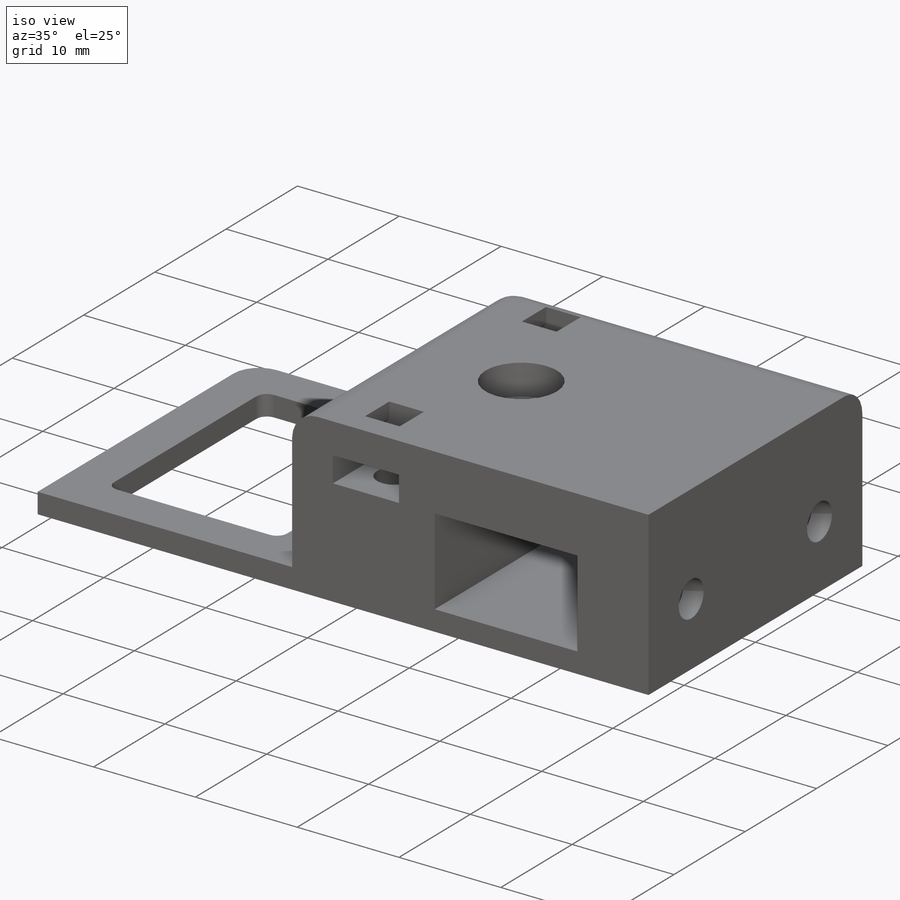
[diagram: iso view]
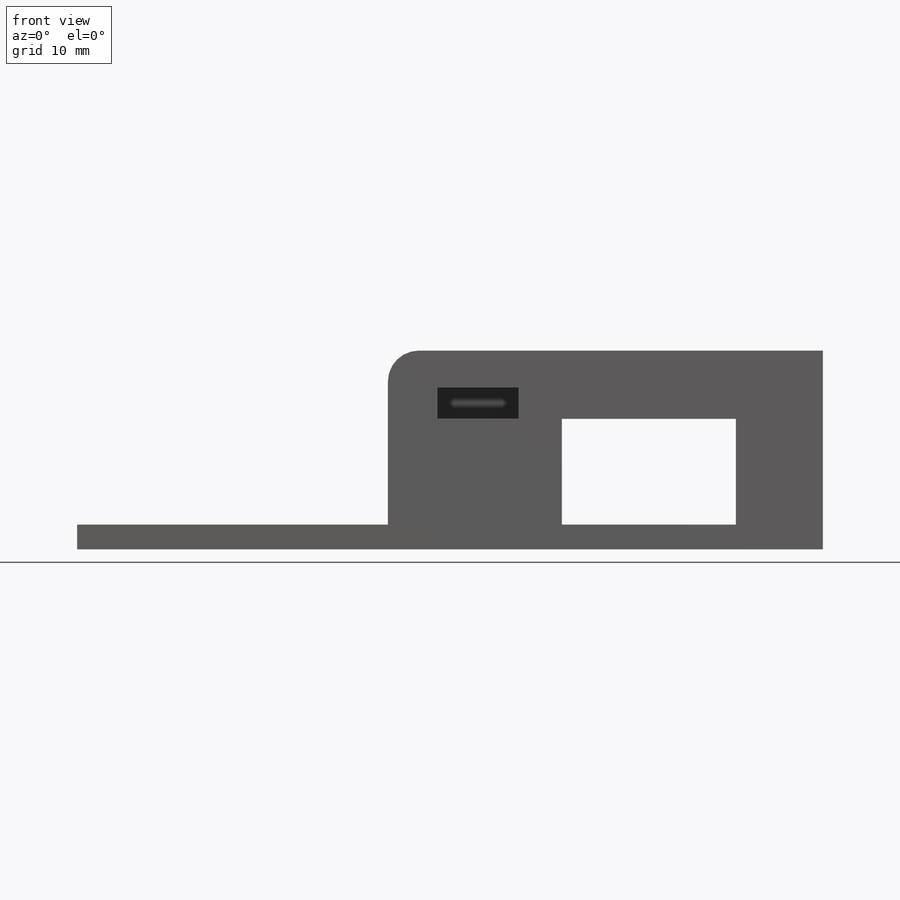
[diagram: front view]
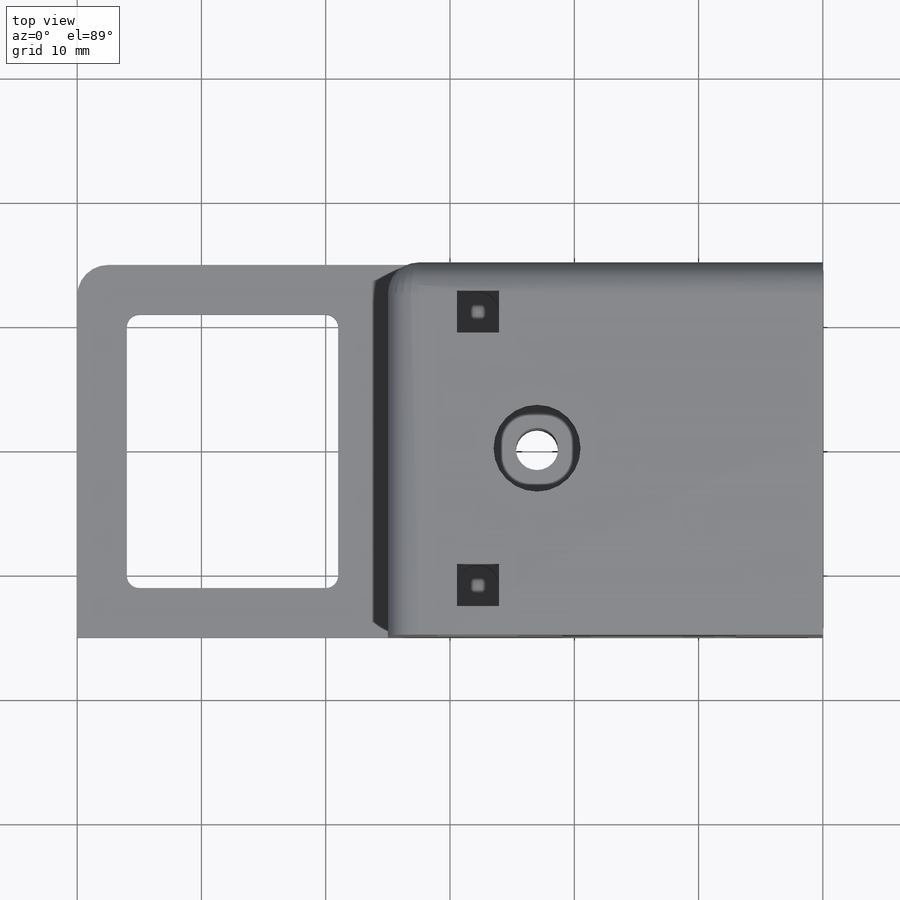
[diagram: top view]
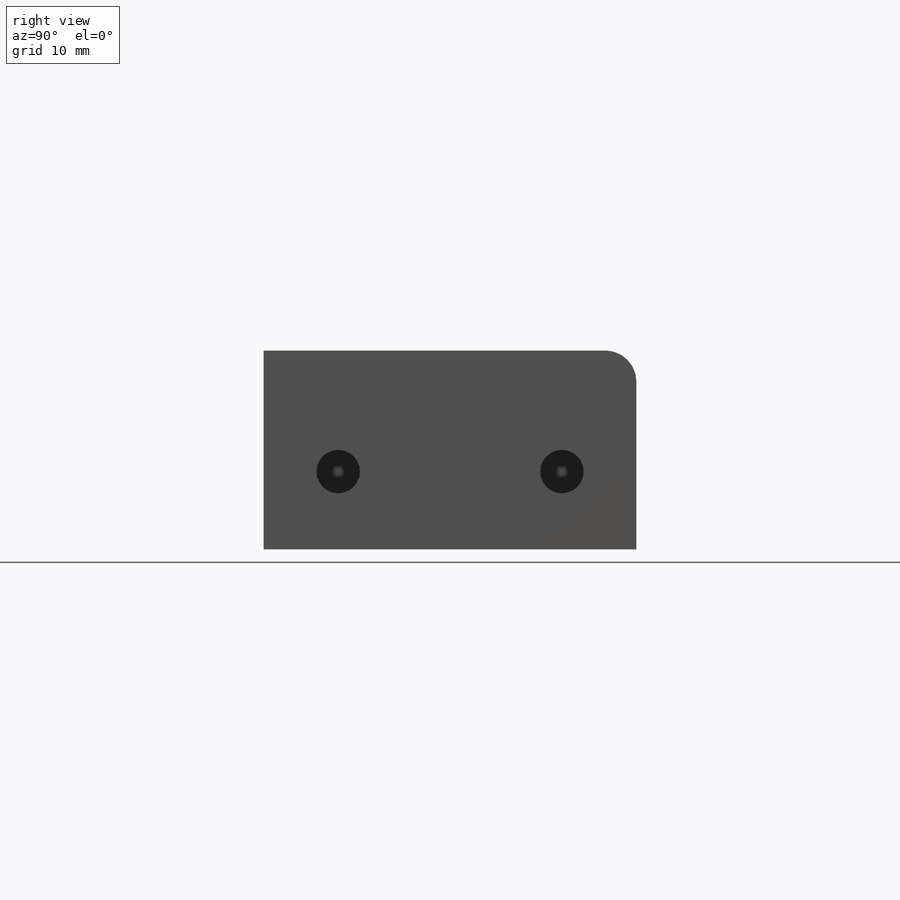
[diagram: right view]
SOLIDWORKS PART (.sldprt)
format: sldprt  version: not decoded by parser v0  size: 336,896 bytes
history: native  units: mm
features: sketch x11, cut_extrude x10, fillet x2, material x1, extrude x1, chamfer x1, mirror x1 (+11 scaffold rows collapsed)
feature tree (38):
  scaffold x11  (default folders/planes/origin — collapsed)
  material  "Material <not specified>"
  sketch  "Sketch1"  dims[D1=30.0mm D2=60.0mm]
  extrude  "Boss-Extrude1"  Depth=16mm
  sketch  "Sketch2"  dims[D1=14.0mm D2=8.5mm D3=7.0mm D4=2.0mm]
  cut_extrude  "Cut-Extrude1"  [1 undecoded]
  sketch  "Sketch3"  dims[D1=7.2mm D2=3.0mm D3=2.0mm D4=6.0mm]
  cut_extrude  "Cut-Extrude2"  Depth=11mm
  sketch  "Sketch4"  dims[D1=3.5mm D2=6.0mm]
  cut_extrude  "Cut-Extrude3"  [1 undecoded]
  sketch  "Sketch5"  dims[D1=25.0mm D2=2.0mm]
  cut_extrude  "Cut-Extrude4"  [1 undecoded]
  sketch  "Sketch6"  dims[D1=4.0mm D2=4.0mm D3=4.0mm]
  cut_extrude  "Cut-Extrude5"  [1 undecoded]
  sketch  "Sketch7"  dims[D1=2.5mm D2=6.5mm D3=3.0mm D4=4.0mm]
  cut_extrude  "Cut-Extrude6"  Depth=10mm
  sketch  "Sketch8"  dims[D1=3.4mm D2=7.25mm D3=4.0mm]
  cut_extrude  "Cut-Extrude7"  Depth=8mm
  sketch  "Sketch9"  dims[D1=3.4mm D2=12.0mm]
  cut_extrude  "Cut-Extrude8"  [1 undecoded]
  sketch  "Sketch10"  dims[D1=7.0mm]
  cut_extrude  "Cut-Extrude9"  Depth=3mm
  sketch  "Sketch11"
  cut_extrude  "Cut-Extrude10"  [1 undecoded]
  chamfer  "Chamfer1"  Distance=1.5mm Angle=45deg
  mirror  "Mirror1"
  fillet  "Fillet1"  Radius=1mm
  fillet  "Fillet2"  Radius=2.5mm
decode coverage: 18 of 26 modeling features carry decoded parameters
note: 6 parameter values undecoded
summary: no parameter record found for 6 features
note: suppression state not decoded; provenance and decode notes live in map.json
